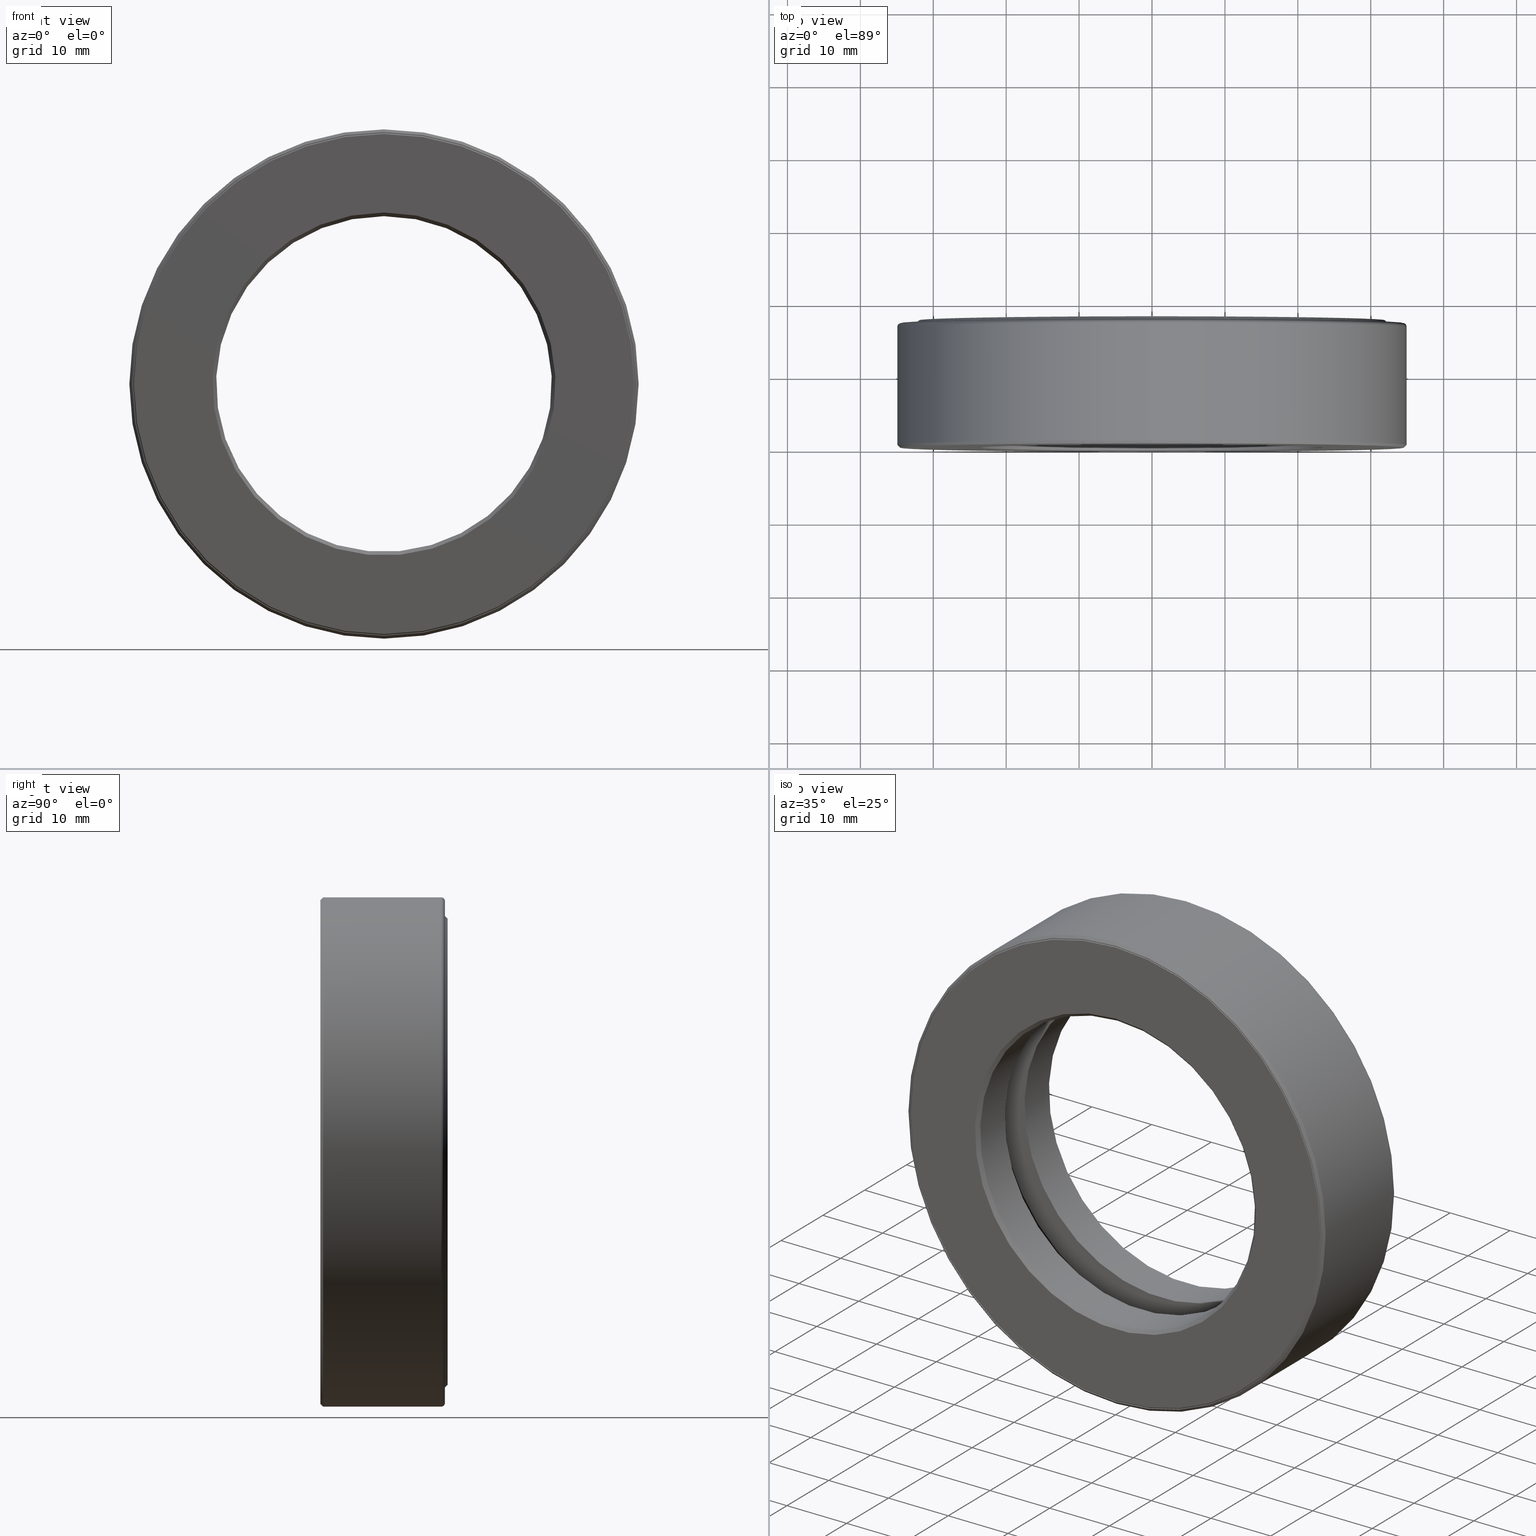
[diagram: canonical four-view strip — front | top / right | iso, engineering-drawing reading convention]
A machine part, canonical four-view strip (front | top / right | iso — engineering-drawing reading convention). The complete STEP part file that produces these views, byte-faithful:
ISO-10303-21;
HEADER;
FILE_DESCRIPTION (( 'STEP AP203' ),
    '1' );
FILE_NAME ('T-100-25.step',
    '2016-06-29T18:27:26',
    ( '' ),
    ( '' ),
    'SwSTEP 2.0',
    'SolidWorks 2016',
    '' );
FILE_SCHEMA (( 'CONFIG_CONTROL_DESIGN' ));
ENDSEC;

DATA;
#1 = DIRECTION ( 'NONE',  ( -0.0000000000000000000, 1.000000000000000000, -0.0000000000000000000 ) ) ;
#2 = EDGE_LOOP ( 'NONE', ( #434 ) ) ;
#3 = EDGE_LOOP ( 'NONE', ( #406 ) ) ;
#4 = EDGE_CURVE ( 'NONE', #81, #81, #383, .T. ) ;
#5 = FACE_OUTER_BOUND ( 'NONE', #206, .T. ) ;
#6 = ADVANCED_FACE ( 'NONE', ( #414, #279 ), #464, .T. ) ;
#7 = DIRECTION ( 'NONE',  ( 0.0000000000000000000, 0.0000000000000000000, 1.000000000000000000 ) ) ;
#8 = CIRCLE ( 'NONE', #339, 1.359999999999999900 ) ;
#9 = ADVANCED_FACE ( 'NONE', ( #175, #259 ), #73, .F. ) ;
#10 = EDGE_LOOP ( 'NONE', ( #548 ) ) ;
#11 = CALENDAR_DATE ( 2016, 29, 6 ) ;
#12 = FACE_OUTER_BOUND ( 'NONE', #10, .T. ) ;
#13 = AXIS2_PLACEMENT_3D ( 'NONE', #114, #415, #361 ) ;
#14 = CARTESIAN_POINT ( 'NONE',  ( 0.0000000000000000000, 0.0000000000000000000, 0.0000000000000000000 ) ) ;
#15 = DIRECTION ( 'NONE',  ( 1.000000000000000000, 0.0000000000000000000, 0.0000000000000000000 ) ) ;
#16 = ADVANCED_BREP_SHAPE_REPRESENTATION ( 'T-100-25', ( #392, #509, #528, #197, #467, #525, #554 ), #345 ) ;
#17 = PERSON ( 'UNSPECIFIED', 'UNSPECIFIED', 'UNSPECIFIED', ('UNSPECIFIED'), ('UNSPECIFIED'), ('UNSPECIFIED') ) ;
#18 = CARTESIAN_POINT ( 'NONE',  ( 0.0000000000000000000, -6.189343110645596500E-017, 0.0000000000000000000 ) ) ;
#19 = VERTEX_POINT ( 'NONE', #452 ) ;
#20 = EDGE_LOOP ( 'NONE', ( #132 ) ) ;
#21 = CYLINDRICAL_SURFACE ( 'NONE', #330, 0.9062500000000001100 ) ;
#22 = ADVANCED_FACE ( 'NONE', ( #46, #394 ), #522, .F. ) ;
#23 = CARTESIAN_POINT ( 'NONE',  ( 0.0000000000000000000, 0.4375000000000000600, 1.347999999999999600 ) ) ;
#24 = PRODUCT_RELATED_PRODUCT_CATEGORY ( 'detail', '', ( #105 ) ) ;
#25 = PERSON_AND_ORGANIZATION_ROLE ( 'design_supplier' ) ;
#26 = AXIS2_PLACEMENT_3D ( 'NONE', #162, #210, #77 ) ;
#27 = ORIENTED_EDGE ( 'NONE', *, *, #117, .F. ) ;
#28 = ORIENTED_EDGE ( 'NONE', *, *, #307, .T. ) ;
#29 = DIRECTION ( 'NONE',  ( 0.0000000000000000000, -1.000000000000000000, 0.0000000000000000000 ) ) ;
#30 = CIRCLE ( 'NONE', #391, 1.355000000000000000 ) ;
#31 = DIRECTION ( 'NONE',  ( 0.0000000000000000000, 0.0000000000000000000, 1.000000000000000000 ) ) ;
#32 = CARTESIAN_POINT ( 'NONE',  ( 1.885147471968638200E-016, 0.4375000000000000600, 0.0000000000000000000 ) ) ;
#33 = DIRECTION ( 'NONE',  ( -0.0000000000000000000, 1.000000000000000000, -0.0000000000000000000 ) ) ;
#34 = AXIS2_PLACEMENT_3D ( 'NONE', #14, #344, #199 ) ;
#35 = CIRCLE ( 'NONE', #52, 1.375000000000000000 ) ;
#36 = EDGE_LOOP ( 'NONE', ( #144 ) ) ;
#37 = DIRECTION ( 'NONE',  ( -0.0000000000000000000, 1.000000000000000000, -0.0000000000000000000 ) ) ;
#38 = COORDINATED_UNIVERSAL_TIME_OFFSET ( 5, 0, .BEHIND. ) ;
#39 = VERTEX_POINT ( 'NONE', #489 ) ;
#40 = EDGE_CURVE ( 'NONE', #39, #39, #267, .T. ) ;
#41 = ORIENTED_EDGE ( 'NONE', *, *, #382, .F. ) ;
#42 = EDGE_LOOP ( 'NONE', ( #487 ) ) ;
#43 = AXIS2_PLACEMENT_3D ( 'NONE', #387, #237, #15 ) ;
#44 = CIRCLE ( 'NONE', #351, 1.314749999999999600 ) ;
#45 = AXIS2_PLACEMENT_3D ( 'NONE', #227, #515, #425 ) ;
#46 = FACE_OUTER_BOUND ( 'NONE', #51, .T. ) ;
#47 = DATE_AND_TIME ( #170, #281 ) ;
#48 = VERTEX_POINT ( 'NONE', #437 ) ;
#49 = CARTESIAN_POINT ( 'NONE',  ( 0.0000000000000000000, 0.02000000000000046900, 0.0000000000000000000 ) ) ;
#50 = EDGE_LOOP ( 'NONE', ( #348 ) ) ;
#51 = EDGE_LOOP ( 'NONE', ( #304 ) ) ;
#52 = AXIS2_PLACEMENT_3D ( 'NONE', #502, #409, #308 ) ;
#53 = VERTEX_POINT ( 'NONE', #445 ) ;
#54 = ADVANCED_FACE ( 'NONE', ( #450, #428 ), #97, .T. ) ;
#55 = CARTESIAN_POINT ( 'NONE',  ( 0.0000000000000000000, 0.6674999999999995400, 0.0000000000000000000 ) ) ;
#56 = DIRECTION ( 'NONE',  ( 0.0000000000000000000, 0.0000000000000000000, 1.000000000000000000 ) ) ;
#57 = ADVANCED_FACE ( 'NONE', ( #568, #547 ), #262, .T. ) ;
#58 = CARTESIAN_POINT ( 'NONE',  ( -1.842120276897010000E-032, 4.268512490100411300E-018, 0.0000000000000000000 ) ) ;
#59 = CONICAL_SURFACE ( 'NONE', #476, 1.259999999999999600, 0.7853981633974498300 ) ;
#60 = EDGE_LOOP ( 'NONE', ( #195 ) ) ;
#61 = CARTESIAN_POINT ( 'NONE',  ( 0.0000000000000000000, 0.5995000000000002500, 1.347999999999999600 ) ) ;
#62 = APPROVAL_PERSON_ORGANIZATION ( #490, #514, #161 ) ;
#63 = DIRECTION ( 'NONE',  ( 0.0000000000000000000, 0.0000000000000000000, 1.000000000000000000 ) ) ;
#64 = CYLINDRICAL_SURFACE ( 'NONE', #34, 1.294999999999999900 ) ;
#65 = PRODUCT_DEFINITION_FORMATION_WITH_SPECIFIED_SOURCE ( 'ANY', '', #105, .NOT_KNOWN. ) ;
#66 = DIRECTION ( 'NONE',  ( 0.0000000000000000000, 0.0000000000000000000, 1.000000000000000000 ) ) ;
#67 = DIRECTION ( 'NONE',  ( -0.0000000000000000000, 1.000000000000000000, -0.0000000000000000000 ) ) ;
#68 = ADVANCED_FACE ( 'NONE', ( #151, #322 ), #59, .T. ) ;
#69 = CARTESIAN_POINT ( 'NONE',  ( 0.0000000000000000000, 0.6524999999999999700, 1.375000000000000000 ) ) ;
#70 = AXIS2_PLACEMENT_3D ( 'NONE', #306, #456, #216 ) ;
#71 = CARTESIAN_POINT ( 'NONE',  ( 0.0000000000000000000, -5.975917486140575200E-017, 0.0000000000000000000 ) ) ;
#72 = APPROVAL_STATUS ( 'not_yet_approved' ) ;
#73 = CYLINDRICAL_SURFACE ( 'NONE', #546, 1.355000000000000000 ) ;
#74 = CARTESIAN_POINT ( 'NONE',  ( 0.0000000000000000000, 0.2499999999999999700, 0.0000000000000000000 ) ) ;
#75 = SECURITY_CLASSIFICATION_LEVEL ( 'unclassified' ) ;
#76 = DIRECTION ( 'NONE',  ( 0.0000000000000000000, -1.000000000000000000, 0.0000000000000000000 ) ) ;
#77 = DIRECTION ( 'NONE',  ( 0.0000000000000000000, 0.0000000000000000000, 1.000000000000000000 ) ) ;
#78 = CIRCLE ( 'NONE', #129, 1.347999999999999600 ) ;
#79 = ORIENTED_EDGE ( 'NONE', *, *, #364, .T. ) ;
#80 = COORDINATED_UNIVERSAL_TIME_OFFSET ( 5, 0, .BEHIND. ) ;
#81 = VERTEX_POINT ( 'NONE', #285 ) ;
#82 = EDGE_CURVE ( 'NONE', #48, #48, #510, .T. ) ;
#83 = CARTESIAN_POINT ( 'NONE',  ( 0.0000000000000000000, 0.0000000000000000000, 0.0000000000000000000 ) ) ;
#84 = ORIENTED_EDGE ( 'NONE', *, *, #200, .T. ) ;
#85 = ORIENTED_EDGE ( 'NONE', *, *, #516, .F. ) ;
#86 = DIRECTION ( 'NONE',  ( -0.0000000000000000000, 1.000000000000000000, -0.0000000000000000000 ) ) ;
#87 = CALENDAR_DATE ( 2016, 29, 6 ) ;
#88 = AXIS2_PLACEMENT_3D ( 'NONE', #166, #219, #413 ) ;
#89 = CARTESIAN_POINT ( 'NONE',  ( 0.0000000000000000000, 0.0000000000000000000, 0.0000000000000000000 ) ) ;
#90 = FACE_OUTER_BOUND ( 'NONE', #50, .T. ) ;
#91 = ORIENTED_EDGE ( 'NONE', *, *, #326, .T. ) ;
#92 = LOCAL_TIME ( 14, 27, 26.00000000000000000, #314 ) ;
#93 = CIRCLE ( 'NONE', #186, 0.9062500000000002200 ) ;
#94 = AXIS2_PLACEMENT_3D ( 'NONE', #71, #572, #202 ) ;
#95 = CARTESIAN_POINT ( 'NONE',  ( 0.0000000000000000000, 0.2499999999999998600, 0.0000000000000000000 ) ) ;
#96 = EDGE_CURVE ( 'NONE', #295, #295, #149, .T. ) ;
#97 = TOROIDAL_SURFACE ( 'NONE', #143, 1.355000000000000000, 0.02000000000000005900 ) ;
#98 = EDGE_LOOP ( 'NONE', ( #120 ) ) ;
#99 = VERTEX_POINT ( 'NONE', #69 ) ;
#100 = CARTESIAN_POINT ( 'NONE',  ( 0.0000000000000000000, 0.4375000000000001100, 0.0000000000000000000 ) ) ;
#101 = DIRECTION ( 'NONE',  ( -0.0000000000000000000, 1.000000000000000000, -0.0000000000000000000 ) ) ;
#102 = SPHERICAL_SURFACE ( 'NONE', #602, 0.1562500000000000000 ) ;
#103 = ADVANCED_FACE ( 'NONE', ( #119, #439 ), #211, .F. ) ;
#104 = EDGE_LOOP ( 'NONE', ( #303 ) ) ;
#105 = PRODUCT ( 'T-100-25', 'T-100-25', '', ( #208 ) ) ;
#106 = VERTEX_POINT ( 'NONE', #346 ) ;
#107 = ADVANCED_FACE ( 'NONE', ( ), #372, .T. ) ;
#108 = CARTESIAN_POINT ( 'NONE',  ( 0.0000000000000000000, 0.0000000000000000000, 0.0000000000000000000 ) ) ;
#109 = ORIENTED_EDGE ( 'NONE', *, *, #465, .F. ) ;
#110 =( NAMED_UNIT ( * ) SI_UNIT ( $, .STERADIAN. ) SOLID_ANGLE_UNIT ( ) );
#111 = PERSON_AND_ORGANIZATION ( #17, #184 ) ;
#112 = VERTEX_POINT ( 'NONE', #23 ) ;
#113 = APPROVAL_STATUS ( 'not_yet_approved' ) ;
#114 = CARTESIAN_POINT ( 'NONE',  ( 0.0000000000000000000, 0.6724999999999999900, 0.0000000000000000000 ) ) ;
#115 = PERSON_AND_ORGANIZATION_ROLE ( 'classification_officer' ) ;
#116 = CARTESIAN_POINT ( 'NONE',  ( 0.0000000000000000000, 0.6875000000000000000, 0.0000000000000000000 ) ) ;
#117 = EDGE_CURVE ( 'NONE', #112, #112, #78, .T. ) ;
#118 = CARTESIAN_POINT ( 'NONE',  ( 0.0000000000000000000, 0.6524999999999999700, 1.294999999999999900 ) ) ;
#119 = FACE_BOUND ( 'NONE', #366, .T. ) ;
#120 = ORIENTED_EDGE ( 'NONE', *, *, #582, .F. ) ;
#121 = VERTEX_POINT ( 'NONE', #497 ) ;
#122 = DIRECTION ( 'NONE',  ( -0.0000000000000000000, 1.000000000000000000, -0.0000000000000000000 ) ) ;
#123 = CC_DESIGN_PERSON_AND_ORGANIZATION_ASSIGNMENT ( #111, #448, ( #435 ) ) ;
#124 = PLANE ( 'NONE',  #180 ) ;
#125 = EDGE_LOOP ( 'NONE', ( #27 ) ) ;
#126 = EDGE_LOOP ( 'NONE', ( #183 ) ) ;
#127 = LOCAL_TIME ( 14, 27, 26.00000000000000000, #538 ) ;
#128 = FACE_OUTER_BOUND ( 'NONE', #367, .T. ) ;
#129 = AXIS2_PLACEMENT_3D ( 'NONE', #171, #433, #457 ) ;
#130 = DIRECTION ( 'NONE',  ( -0.0000000000000000000, 1.000000000000000000, -0.0000000000000000000 ) ) ;
#131 = EDGE_LOOP ( 'NONE', ( #495 ) ) ;
#132 = ORIENTED_EDGE ( 'NONE', *, *, #200, .F. ) ;
#133 = CARTESIAN_POINT ( 'NONE',  ( 1.189749999999999900, 0.3437500000000000600, -8.307979845777234500E-015 ) ) ;
#134 = DATE_AND_TIME ( #11, #92 ) ;
#135 = DIRECTION ( 'NONE',  ( 0.0000000000000000000, 0.0000000000000000000, 1.000000000000000000 ) ) ;
#136 = DIRECTION ( 'NONE',  ( 0.0000000000000000000, 0.0000000000000000000, 1.000000000000000000 ) ) ;
#137 = EDGE_LOOP ( 'NONE', ( #337 ) ) ;
#138 = ORIENTED_EDGE ( 'NONE', *, *, #187, .T. ) ;
#139 = PERSON_AND_ORGANIZATION ( #17, #184 ) ;
#140 = VERTEX_POINT ( 'NONE', #400 ) ;
#141 = ADVANCED_FACE ( 'NONE', ( ), #102, .T. ) ;
#142 = SECURITY_CLASSIFICATION ( '', '', #75 ) ;
#143 = AXIS2_PLACEMENT_3D ( 'NONE', #264, #550, #354 ) ;
#144 = ORIENTED_EDGE ( 'NONE', *, *, #40, .F. ) ;
#145 = FACE_BOUND ( 'NONE', #347, .T. ) ;
#146 = AXIS2_PLACEMENT_3D ( 'NONE', #424, #419, #269 ) ;
#147 = CARTESIAN_POINT ( 'NONE',  ( 0.0000000000000000000, 0.2499999999999998600, 0.0000000000000000000 ) ) ;
#148 = DIRECTION ( 'NONE',  ( 0.0000000000000000000, 0.0000000000000000000, 1.000000000000000000 ) ) ;
#149 = CIRCLE ( 'NONE', #557, 1.347999999999999600 ) ;
#150 = DIRECTION ( 'NONE',  ( -0.0000000000000000000, 1.000000000000000000, 0.0000000000000000000 ) ) ;
#151 = FACE_OUTER_BOUND ( 'NONE', #531, .T. ) ;
#152 = CC_DESIGN_APPROVAL ( #500, ( #65 ) ) ;
#153 = APPROVAL_PERSON_ORGANIZATION ( #480, #446, #353 ) ;
#154 = VERTEX_POINT ( 'NONE', #454 ) ;
#155 = DIRECTION ( 'NONE',  ( 0.0000000000000000000, 0.0000000000000000000, 1.000000000000000000 ) ) ;
#156 = APPROVAL_ROLE ( '' ) ;
#157 = EDGE_CURVE ( 'NONE', #524, #524, #44, .T. ) ;
#158 = APPLICATION_PROTOCOL_DEFINITION ( 'international standard', 'config_control_design', 1994, #404 ) ;
#159 = ORIENTED_EDGE ( 'NONE', *, *, #310, .F. ) ;
#160 = EDGE_LOOP ( 'NONE', ( #474 ) ) ;
#161 = APPROVAL_ROLE ( '' ) ;
#162 = CARTESIAN_POINT ( 'NONE',  ( 0.0000000000000000000, 0.6724999999999999900, 0.0000000000000000000 ) ) ;
#163 =( CONVERSION_BASED_UNIT ( 'INCH', #600 ) LENGTH_UNIT ( ) NAMED_UNIT ( #341 ) );
#164 = DIRECTION ( 'NONE',  ( 0.0000000000000000000, 0.0000000000000000000, 1.000000000000000000 ) ) ;
#165 = DIRECTION ( 'NONE',  ( 0.0000000000000000000, 0.0000000000000000000, 1.000000000000000000 ) ) ;
#166 = CARTESIAN_POINT ( 'NONE',  ( 0.0000000000000000000, 0.6524999999999999700, 0.0000000000000000000 ) ) ;
#167 = DIRECTION ( 'NONE',  ( -0.0000000000000000000, 1.000000000000000000, -0.0000000000000000000 ) ) ;
#168 = ORIENTED_EDGE ( 'NONE', *, *, #96, .T. ) ;
#169 = EDGE_CURVE ( 'NONE', #154, #154, #212, .T. ) ;
#170 = CALENDAR_DATE ( 2016, 29, 6 ) ;
#171 = CARTESIAN_POINT ( 'NONE',  ( 0.0000000000000000000, 0.4375000000000000600, 0.0000000000000000000 ) ) ;
#172 = CIRCLE ( 'NONE', #263, 0.9062500000000001100 ) ;
#173 = CARTESIAN_POINT ( 'NONE',  ( 0.0000000000000000000, 0.6724999999999999900, 0.0000000000000000000 ) ) ;
#174 = CC_DESIGN_PERSON_AND_ORGANIZATION_ASSIGNMENT ( #241, #115, ( #142 ) ) ;
#175 = FACE_OUTER_BOUND ( 'NONE', #377, .T. ) ;
#176 = ORIENTED_EDGE ( 'NONE', *, *, #482, .T. ) ;
#177 = VERTEX_POINT ( 'NONE', #201 ) ;
#178 = EDGE_CURVE ( 'NONE', #99, #99, #35, .T. ) ;
#179 = CARTESIAN_POINT ( 'NONE',  ( 2.120999995080942100E-016, 0.2499999999999998600, 0.0000000000000000000 ) ) ;
#180 = AXIS2_PLACEMENT_3D ( 'NONE', #173, #181, #558 ) ;
#181 = DIRECTION ( 'NONE',  ( 0.0000000000000000000, -1.000000000000000000, 0.0000000000000000000 ) ) ;
#182 = CIRCLE ( 'NONE', #220, 1.064749999999999900 ) ;
#183 = ORIENTED_EDGE ( 'NONE', *, *, #187, .F. ) ;
#184 = ORGANIZATION ( 'UNSPECIFIED', 'UNSPECIFIED', '' ) ;
#185 = FACE_OUTER_BOUND ( 'NONE', #313, .T. ) ;
#186 = AXIS2_PLACEMENT_3D ( 'NONE', #196, #244, #66 ) ;
#187 = EDGE_CURVE ( 'NONE', #513, #513, #8, .T. ) ;
#188 = ORIENTED_EDGE ( 'NONE', *, *, #96, .F. ) ;
#189 = EDGE_LOOP ( 'NONE', ( #328 ) ) ;
#190 = DIRECTION ( 'NONE',  ( 0.0000000000000000000, 0.0000000000000000000, 1.000000000000000000 ) ) ;
#191 = CARTESIAN_POINT ( 'NONE',  ( 0.0000000000000000000, 0.0000000000000000000, 0.0000000000000000000 ) ) ;
#192 = CARTESIAN_POINT ( 'NONE',  ( 0.0000000000000000000, 0.6875000000000000000, 0.0000000000000000000 ) ) ;
#193 = DIRECTION ( 'NONE',  ( 0.0000000000000000000, 0.0000000000000000000, 1.000000000000000000 ) ) ;
#194 = VERTEX_POINT ( 'NONE', #544 ) ;
#195 = ORIENTED_EDGE ( 'NONE', *, *, #169, .T. ) ;
#196 = CARTESIAN_POINT ( 'NONE',  ( 0.0000000000000000000, 0.4375000000000000600, 0.0000000000000000000 ) ) ;
#197 = MANIFOLD_SOLID_BREP ( 'BALLS[1]', #320 ) ;
#198 = FACE_OUTER_BOUND ( 'NONE', #126, .T. ) ;
#199 = DIRECTION ( 'NONE',  ( 0.0000000000000000000, 0.0000000000000000000, 1.000000000000000000 ) ) ;
#200 = EDGE_CURVE ( 'NONE', #226, #226, #536, .T. ) ;
#201 = CARTESIAN_POINT ( 'NONE',  ( 0.0000000000000000000, 0.6724999999999999900, 1.355000000000000000 ) ) ;
#202 = DIRECTION ( 'NONE',  ( 0.0000000000000000000, 0.0000000000000000000, 1.000000000000000000 ) ) ;
#203 = CARTESIAN_POINT ( 'NONE',  ( 0.0000000000000000000, 0.01499999999999984000, 1.374999999999999300 ) ) ;
#204 = ORIENTED_EDGE ( 'NONE', *, *, #157, .T. ) ;
#205 = AXIS2_PLACEMENT_3D ( 'NONE', #147, #67, #535 ) ;
#206 = EDGE_LOOP ( 'NONE', ( #321 ) ) ;
#207 = DIRECTION ( 'NONE',  ( 0.0000000000000000000, -0.0000000000000000000, -1.000000000000000000 ) ) ;
#208 = MECHANICAL_CONTEXT ( 'NONE', #404, 'mechanical' ) ;
#209 = AXIS2_PLACEMENT_3D ( 'NONE', #32, #29, #597 ) ;
#210 = DIRECTION ( 'NONE',  ( -0.0000000000000000000, 1.000000000000000000, -0.0000000000000000000 ) ) ;
#211 = PLANE ( 'NONE',  #297 ) ;
#212 = CIRCLE ( 'NONE', #26, 1.294999999999999900 ) ;
#213 = AXIS2_PLACEMENT_3D ( 'NONE', #83, #86, #421 ) ;
#214 = DIRECTION ( 'NONE',  ( 0.0000000000000000000, 0.0000000000000000000, 1.000000000000000000 ) ) ;
#215 = EDGE_LOOP ( 'NONE', ( #176 ) ) ;
#216 = DIRECTION ( 'NONE',  ( 0.0000000000000000000, -0.0000000000000000000, -1.000000000000000000 ) ) ;
#217 = COORDINATED_UNIVERSAL_TIME_OFFSET ( 5, 0, .BEHIND. ) ;
#218 = CIRCLE ( 'NONE', #205, 1.355000000000000000 ) ;
#219 = DIRECTION ( 'NONE',  ( -0.0000000000000000000, 1.000000000000000000, -0.0000000000000000000 ) ) ;
#220 = AXIS2_PLACEMENT_3D ( 'NONE', #95, #479, #381 ) ;
#221 = DIRECTION ( 'NONE',  ( 6.982962677686269100E-015, -0.0000000000000000000, 1.000000000000000000 ) ) ;
#222 = ORIENTED_EDGE ( 'NONE', *, *, #582, .T. ) ;
#223 = EDGE_LOOP ( 'NONE', ( #229 ) ) ;
#224 = AXIS2_PLACEMENT_3D ( 'NONE', #116, #315, #311 ) ;
#225 = APPROVAL_PERSON_ORGANIZATION ( #416, #500, #156 ) ;
#226 = VERTEX_POINT ( 'NONE', #258 ) ;
#227 = CARTESIAN_POINT ( 'NONE',  ( 0.0000000000000000000, 0.6524999999999999700, 0.0000000000000000000 ) ) ;
#228 = FACE_OUTER_BOUND ( 'NONE', #574, .T. ) ;
#229 = ORIENTED_EDGE ( 'NONE', *, *, #178, .T. ) ;
#230 = PERSON_AND_ORGANIZATION ( #17, #184 ) ;
#231 = VERTEX_POINT ( 'NONE', #257 ) ;
#232 = DIRECTION ( 'NONE',  ( -0.0000000000000000000, 1.000000000000000000, -0.0000000000000000000 ) ) ;
#233 = ORIENTED_EDGE ( 'NONE', *, *, #4, .F. ) ;
#234 = EDGE_LOOP ( 'NONE', ( #188 ) ) ;
#235 = FACE_OUTER_BOUND ( 'NONE', #2, .T. ) ;
#236 = ADVANCED_FACE ( 'NONE', ( ), #290, .T. ) ;
#237 = DIRECTION ( 'NONE',  ( 0.0000000000000000000, 0.0000000000000000000, -1.000000000000000000 ) ) ;
#238 = ADVANCED_FACE ( 'NONE', ( #355, #573 ), #124, .F. ) ;
#239 = CYLINDRICAL_SURFACE ( 'NONE', #245, 0.9062500000000002200 ) ;
#240 = DIRECTION ( 'NONE',  ( 0.0000000000000000000, 0.0000000000000000000, 1.000000000000000000 ) ) ;
#241 = PERSON_AND_ORGANIZATION ( #17, #184 ) ;
#242 = CIRCLE ( 'NONE', #360, 1.064749999999999900 ) ;
#243 = ADVANCED_FACE ( 'NONE', ( #412, #228 ), #239, .F. ) ;
#244 = DIRECTION ( 'NONE',  ( -0.0000000000000000000, 1.000000000000000000, -0.0000000000000000000 ) ) ;
#245 = AXIS2_PLACEMENT_3D ( 'NONE', #89, #130, #369 ) ;
#246 = DIRECTION ( 'NONE',  ( -0.0000000000000000000, 1.000000000000000000, 0.0000000000000000000 ) ) ;
#247 = DIRECTION ( 'NONE',  ( -0.0000000000000000000, 1.000000000000000000, -0.0000000000000000000 ) ) ;
#248 = ADVANCED_FACE ( 'NONE', ( #604, #458 ), #278, .F. ) ;
#249 = AXIS2_PLACEMENT_3D ( 'NONE', #583, #247, #63 ) ;
#250 = VERTEX_POINT ( 'NONE', #118 ) ;
#251 = EDGE_LOOP ( 'NONE', ( #204 ) ) ;
#252 = DATE_TIME_ROLE ( 'classification_date' ) ;
#253 = CALENDAR_DATE ( 2016, 29, 6 ) ;
#254 = DIRECTION ( 'NONE',  ( -0.0000000000000000000, 1.000000000000000000, -0.0000000000000000000 ) ) ;
#255 = FACE_OUTER_BOUND ( 'NONE', #436, .T. ) ;
#256 = PERSON_AND_ORGANIZATION_ROLE ( 'design_owner' ) ;
#257 = CARTESIAN_POINT ( 'NONE',  ( 0.0000000000000000000, 6.829619984160658000E-017, 0.9262500000000002400 ) ) ;
#258 = CARTESIAN_POINT ( 'NONE',  ( 0.0000000000000000000, 0.6524999999999999700, 1.355000000000000000 ) ) ;
#259 = FACE_OUTER_BOUND ( 'NONE', #537, .T. ) ;
#260 = EDGE_LOOP ( 'NONE', ( #79 ) ) ;
#261 = VERTEX_POINT ( 'NONE', #588 ) ;
#262 = PLANE ( 'NONE',  #209 ) ;
#263 = AXIS2_PLACEMENT_3D ( 'NONE', #55, #101, #193 ) ;
#264 = CARTESIAN_POINT ( 'NONE',  ( 0.0000000000000000000, 0.6524999999999999700, 0.0000000000000000000 ) ) ;
#265 = EDGE_CURVE ( 'NONE', #140, #140, #592, .T. ) ;
#266 = CARTESIAN_POINT ( 'NONE',  ( 0.0000000000000000000, 0.4375000000000001100, 0.0000000000000000000 ) ) ;
#267 = CIRCLE ( 'NONE', #224, 1.259999999999999600 ) ;
#268 = FACE_BOUND ( 'NONE', #283, .T. ) ;
#269 = DIRECTION ( 'NONE',  ( 0.0000000000000000000, 0.0000000000000000000, 1.000000000000000000 ) ) ;
#270 = AXIS2_PLACEMENT_3D ( 'NONE', #542, #300, #449 ) ;
#271 = CARTESIAN_POINT ( 'NONE',  ( 0.0000000000000000000, -6.016065055398661200E-017, 0.0000000000000000000 ) ) ;
#272 = CLOSED_SHELL ( 'NONE', ( #488, #287, #9, #291, #484, #238, #54, #388, #567, #444, #248, #333, #343, #331, #540, #103 ) ) ;
#273 = EDGE_LOOP ( 'NONE', ( #585 ) ) ;
#274 = AXIS2_PLACEMENT_3D ( 'NONE', #508, #596, #463 ) ;
#275 = CIRCLE ( 'NONE', #270, 0.9262500000000002400 ) ;
#276 = EDGE_CURVE ( 'NONE', #329, #329, #312, .T. ) ;
#277 = DIRECTION ( 'NONE',  ( 0.0000000000000000000, -1.000000000000000000, 0.0000000000000000000 ) ) ;
#278 = CYLINDRICAL_SURFACE ( 'NONE', #213, 1.355000000000000000 ) ;
#279 = FACE_OUTER_BOUND ( 'NONE', #125, .T. ) ;
#280 = DIRECTION ( 'NONE',  ( 0.0000000000000000000, 0.0000000000000000000, 1.000000000000000000 ) ) ;
#281 = LOCAL_TIME ( 14, 27, 26.00000000000000000, #217 ) ;
#282 = VERTEX_POINT ( 'NONE', #350 ) ;
#283 = EDGE_LOOP ( 'NONE', ( #138 ) ) ;
#284 = EDGE_LOOP ( 'NONE', ( #41 ) ) ;
#285 = CARTESIAN_POINT ( 'NONE',  ( 0.0000000000000000000, 0.2499999999999999700, 0.9062500000000002200 ) ) ;
#286 = DIRECTION ( 'NONE',  ( -0.0000000000000000000, 1.000000000000000000, -0.0000000000000000000 ) ) ;
#287 = ADVANCED_FACE ( 'NONE', ( #336, #563 ), #472, .F. ) ;
#288 = CARTESIAN_POINT ( 'NONE',  ( 0.0000000000000000000, 0.6524999999999999700, 0.0000000000000000000 ) ) ;
#289 = CC_DESIGN_PERSON_AND_ORGANIZATION_ASSIGNMENT ( #139, #301, ( #65 ) ) ;
#290 = SPHERICAL_SURFACE ( 'NONE', #274, 0.1562500000000000000 ) ;
#291 = ADVANCED_FACE ( 'NONE', ( #552, #501 ), #562, .F. ) ;
#292 = DIRECTION ( 'NONE',  ( -0.0000000000000000000, 1.000000000000000000, -0.0000000000000000000 ) ) ;
#293 = EDGE_LOOP ( 'NONE', ( #91 ) ) ;
#294 = DATE_AND_TIME ( #87, #127 ) ;
#295 = VERTEX_POINT ( 'NONE', #61 ) ;
#296 = DIRECTION ( 'NONE',  ( 0.0000000000000000000, 0.0000000000000000000, 1.000000000000000000 ) ) ;
#297 = AXIS2_PLACEMENT_3D ( 'NONE', #549, #352, #207 ) ;
#298 = ADVANCED_FACE ( 'NONE', ( #90, #427 ), #473, .T. ) ;
#299 = DIRECTION ( 'NONE',  ( 1.000000000000000000, 0.0000000000000000000, 0.0000000000000000000 ) ) ;
#300 = DIRECTION ( 'NONE',  ( -0.0000000000000000000, 1.000000000000000000, -0.0000000000000000000 ) ) ;
#301 = PERSON_AND_ORGANIZATION_ROLE ( 'creator' ) ;
#302 = AXIS2_PLACEMENT_3D ( 'NONE', #342, #150, #493 ) ;
#303 = ORIENTED_EDGE ( 'NONE', *, *, #82, .T. ) ;
#304 = ORIENTED_EDGE ( 'NONE', *, *, #465, .T. ) ;
#305 = APPLICATION_CONTEXT ( 'configuration controlled 3d designs of mechanical parts and assemblies' ) ;
#306 = CARTESIAN_POINT ( 'NONE',  ( -8.986342084421983100E-016, 0.4375000000000000600, 0.0000000000000000000 ) ) ;
#307 = EDGE_CURVE ( 'NONE', #470, #470, #182, .T. ) ;
#308 = DIRECTION ( 'NONE',  ( 0.0000000000000000000, 0.0000000000000000000, 1.000000000000000000 ) ) ;
#309 = DIRECTION ( 'NONE',  ( -0.0000000000000000000, 1.000000000000000000, -0.0000000000000000000 ) ) ;
#310 = EDGE_CURVE ( 'NONE', #261, #261, #242, .T. ) ;
#311 = DIRECTION ( 'NONE',  ( 0.0000000000000000000, 0.0000000000000000000, 1.000000000000000000 ) ) ;
#312 = CIRCLE ( 'NONE', #376, 1.374999999999999300 ) ;
#313 = EDGE_LOOP ( 'NONE', ( #469 ) ) ;
#314 = COORDINATED_UNIVERSAL_TIME_OFFSET ( 5, 0, .BEHIND. ) ;
#315 = DIRECTION ( 'NONE',  ( -0.0000000000000000000, 1.000000000000000000, -0.0000000000000000000 ) ) ;
#316 = SPHERICAL_SURFACE ( 'NONE', #43, 0.1562500000000000000 ) ;
#317 = AXIS2_PLACEMENT_3D ( 'NONE', #485, #246, #148 ) ;
#318 = DIRECTION ( 'NONE',  ( -0.0000000000000000000, 1.000000000000000000, -0.0000000000000000000 ) ) ;
#319 = AXIS2_PLACEMENT_3D ( 'NONE', #545, #587, #512 ) ;
#320 = CLOSED_SHELL ( 'NONE', ( #107 ) ) ;
#321 = ORIENTED_EDGE ( 'NONE', *, *, #276, .T. ) ;
#322 = FACE_BOUND ( 'NONE', #36, .T. ) ;
#323 = ORIENTED_EDGE ( 'NONE', *, *, #265, .F. ) ;
#324 = AXIS2_PLACEMENT_3D ( 'NONE', #288, #286, #577 ) ;
#325 = CONICAL_SURFACE ( 'NONE', #94, 1.349999999999999400, 0.7853981633974813600 ) ;
#326 = EDGE_CURVE ( 'NONE', #121, #121, #218, .T. ) ;
#327 = EDGE_LOOP ( 'NONE', ( #468 ) ) ;
#328 = ORIENTED_EDGE ( 'NONE', *, *, #382, .T. ) ;
#329 = VERTEX_POINT ( 'NONE', #203 ) ;
#330 = AXIS2_PLACEMENT_3D ( 'NONE', #108, #292, #7 ) ;
#331 = ADVANCED_FACE ( 'NONE', ( #255, #594 ), #461, .F. ) ;
#332 = AXIS2_PLACEMENT_3D ( 'NONE', #49, #431, #580 ) ;
#333 = ADVANCED_FACE ( 'NONE', ( #128, #539 ), #325, .T. ) ;
#334 = DIRECTION ( 'NONE',  ( -0.0000000000000000000, 1.000000000000000000, -0.0000000000000000000 ) ) ;
#335 = DIRECTION ( 'NONE',  ( -0.0000000000000000000, 1.000000000000000000, -0.0000000000000000000 ) ) ;
#336 = FACE_BOUND ( 'NONE', #284, .T. ) ;
#337 = ORIENTED_EDGE ( 'NONE', *, *, #4, .T. ) ;
#338 = PLANE ( 'NONE',  #317 ) ;
#339 = AXIS2_PLACEMENT_3D ( 'NONE', #466, #37, #365 ) ;
#340 = FACE_OUTER_BOUND ( 'NONE', #593, .T. ) ;
#341 = DIMENSIONAL_EXPONENTS ( 1.000000000000000000, 0.0000000000000000000, 0.0000000000000000000, 0.0000000000000000000, 0.0000000000000000000, 0.0000000000000000000, 0.0000000000000000000 ) ;
#342 = CARTESIAN_POINT ( 'NONE',  ( 0.0000000000000000000, 0.6875000000000000000, 0.0000000000000000000 ) ) ;
#343 = ADVANCED_FACE ( 'NONE', ( #340, #576 ), #401, .F. ) ;
#344 = DIRECTION ( 'NONE',  ( -0.0000000000000000000, 1.000000000000000000, -0.0000000000000000000 ) ) ;
#345 =( GEOMETRIC_REPRESENTATION_CONTEXT ( 3 ) GLOBAL_UNCERTAINTY_ASSIGNED_CONTEXT ( ( #520 ) ) GLOBAL_UNIT_ASSIGNED_CONTEXT ( ( #163, #503, #110 ) ) REPRESENTATION_CONTEXT ( 'NONE', 'WORKASPACE' ) );
#346 = CARTESIAN_POINT ( 'NONE',  ( 0.0000000000000000000, -5.975917486140575200E-017, 1.349999999999999400 ) ) ;
#347 = EDGE_LOOP ( 'NONE', ( #109 ) ) ;
#348 = ORIENTED_EDGE ( 'NONE', *, *, #117, .T. ) ;
#349 = CIRCLE ( 'NONE', #324, 1.294999999999999900 ) ;
#350 = CARTESIAN_POINT ( 'NONE',  ( 0.0000000000000000000, 0.2499999999999998300, 1.314749999999999600 ) ) ;
#351 = AXIS2_PLACEMENT_3D ( 'NONE', #266, #318, #214 ) ;
#352 = DIRECTION ( 'NONE',  ( 0.0000000000000000000, -1.000000000000000000, 0.0000000000000000000 ) ) ;
#353 = APPROVAL_ROLE ( '' ) ;
#354 = DIRECTION ( 'NONE',  ( 0.0000000000000000000, 0.0000000000000000000, 1.000000000000000000 ) ) ;
#355 = FACE_BOUND ( 'NONE', #3, .T. ) ;
#356 = CARTESIAN_POINT ( 'NONE',  ( 0.0000000000000000000, 0.2499999999999998600, 1.064749999999999900 ) ) ;
#357 = DIRECTION ( 'NONE',  ( 0.0000000000000000000, 0.0000000000000000000, 1.000000000000000000 ) ) ;
#358 = CARTESIAN_POINT ( 'NONE',  ( 0.0000000000000000000, -5.975917486140575200E-017, 0.0000000000000000000 ) ) ;
#359 = FACE_OUTER_BOUND ( 'NONE', #189, .T. ) ;
#360 = AXIS2_PLACEMENT_3D ( 'NONE', #100, #254, #240 ) ;
#361 = DIRECTION ( 'NONE',  ( 0.0000000000000000000, 0.0000000000000000000, 1.000000000000000000 ) ) ;
#362 = DIRECTION ( 'NONE',  ( 0.0000000000000000000, 0.0000000000000000000, 1.000000000000000000 ) ) ;
#363 = DESIGN_CONTEXT ( 'detailed design', #305, 'design' ) ;
#364 = EDGE_CURVE ( 'NONE', #231, #231, #275, .T. ) ;
#365 = DIRECTION ( 'NONE',  ( 0.0000000000000000000, 0.0000000000000000000, 1.000000000000000000 ) ) ;
#366 = EDGE_LOOP ( 'NONE', ( #233 ) ) ;
#367 = EDGE_LOOP ( 'NONE', ( #323 ) ) ;
#368 = FACE_OUTER_BOUND ( 'NONE', #423, .T. ) ;
#369 = DIRECTION ( 'NONE',  ( 0.0000000000000000000, 0.0000000000000000000, 1.000000000000000000 ) ) ;
#370 = CC_DESIGN_PERSON_AND_ORGANIZATION_ASSIGNMENT ( #442, #256, ( #105 ) ) ;
#371 = CC_DESIGN_DATE_AND_TIME_ASSIGNMENT ( #47, #252, ( #142 ) ) ;
#372 = SPHERICAL_SURFACE ( 'NONE', #319, 0.1562500000000000000 ) ;
#373 = ORIENTED_EDGE ( 'NONE', *, *, #265, .T. ) ;
#374 = LOCAL_TIME ( 14, 27, 26.00000000000000000, #38 ) ;
#375 = FACE_OUTER_BOUND ( 'NONE', #42, .T. ) ;
#376 = AXIS2_PLACEMENT_3D ( 'NONE', #561, #232, #135 ) ;
#377 = EDGE_LOOP ( 'NONE', ( #441 ) ) ;
#378 = AXIS2_PLACEMENT_3D ( 'NONE', #58, #390, #56 ) ;
#379 = CLOSED_SHELL ( 'NONE', ( #6, #530, #57, #243, #22, #447, #68, #298 ) ) ;
#380 = CIRCLE ( 'NONE', #249, 1.314749999999999600 ) ;
#381 = DIRECTION ( 'NONE',  ( 0.0000000000000000000, 0.0000000000000000000, 1.000000000000000000 ) ) ;
#382 = EDGE_CURVE ( 'NONE', #282, #282, #380, .T. ) ;
#383 = CIRCLE ( 'NONE', #396, 0.9062500000000002200 ) ;
#384 = DIRECTION ( 'NONE',  ( 0.0000000000000000000, 0.0000000000000000000, 1.000000000000000000 ) ) ;
#385 = EDGE_LOOP ( 'NONE', ( #477 ) ) ;
#386 = FACE_OUTER_BOUND ( 'NONE', #422, .T. ) ;
#387 = CARTESIAN_POINT ( 'NONE',  ( -1.189749999999999900, 0.3437500000000000600, 0.0000000000000000000 ) ) ;
#388 = ADVANCED_FACE ( 'NONE', ( #12, #5 ), #417, .T. ) ;
#389 = CARTESIAN_POINT ( 'NONE',  ( 0.0000000000000000000, 0.3437500000000000600, 0.0000000000000000000 ) ) ;
#390 = DIRECTION ( 'NONE',  ( -0.0000000000000000000, 1.000000000000000000, 0.0000000000000000000 ) ) ;
#391 = AXIS2_PLACEMENT_3D ( 'NONE', #271, #1, #579 ) ;
#392 = MANIFOLD_SOLID_BREP ( 'Revolve2[1]', #272 ) ;
#393 = CARTESIAN_POINT ( 'NONE',  ( 0.0000000000000000000, 0.0000000000000000000, 0.0000000000000000000 ) ) ;
#394 = FACE_BOUND ( 'NONE', #98, .T. ) ;
#395 = CARTESIAN_POINT ( 'NONE',  ( 0.0000000000000000000, 0.3437500000000000600, 0.0000000000000000000 ) ) ;
#396 = AXIS2_PLACEMENT_3D ( 'NONE', #74, #309, #165 ) ;
#397 = DATE_AND_TIME ( #523, #374 ) ;
#398 = DIRECTION ( 'NONE',  ( 0.0000000000000000000, 0.0000000000000000000, 1.000000000000000000 ) ) ;
#399 = CIRCLE ( 'NONE', #13, 1.355000000000000000 ) ;
#400 = CARTESIAN_POINT ( 'NONE',  ( 0.0000000000000000000, 0.004999999999999966300, 1.355000000000000000 ) ) ;
#401 = PLANE ( 'NONE',  #378 ) ;
#402 = CARTESIAN_POINT ( 'NONE',  ( 0.0000000000000000000, 0.4375000000000000600, 0.9062500000000002200 ) ) ;
#403 = AXIS2_PLACEMENT_3D ( 'NONE', #191, #526, #280 ) ;
#404 = APPLICATION_CONTEXT ( 'configuration controlled 3d designs of mechanical parts and assemblies' ) ;
#405 = DIRECTION ( 'NONE',  ( -0.0000000000000000000, 1.000000000000000000, -0.0000000000000000000 ) ) ;
#406 = ORIENTED_EDGE ( 'NONE', *, *, #169, .F. ) ;
#407 = EDGE_LOOP ( 'NONE', ( #222 ) ) ;
#408 = CC_DESIGN_SECURITY_CLASSIFICATION ( #142, ( #65 ) ) ;
#409 = DIRECTION ( 'NONE',  ( -0.0000000000000000000, 1.000000000000000000, -0.0000000000000000000 ) ) ;
#410 = EDGE_CURVE ( 'NONE', #106, #106, #565, .T. ) ;
#411 = CARTESIAN_POINT ( 'NONE',  ( 0.0000000000000000000, 0.6674999999999995400, 0.0000000000000000000 ) ) ;
#412 = FACE_OUTER_BOUND ( 'NONE', #407, .T. ) ;
#413 = DIRECTION ( 'NONE',  ( 0.0000000000000000000, 0.0000000000000000000, 1.000000000000000000 ) ) ;
#414 = FACE_BOUND ( 'NONE', #251, .T. ) ;
#415 = DIRECTION ( 'NONE',  ( -0.0000000000000000000, 1.000000000000000000, -0.0000000000000000000 ) ) ;
#416 = PERSON_AND_ORGANIZATION ( #17, #184 ) ;
#417 = CYLINDRICAL_SURFACE ( 'NONE', #438, 1.374999999999999800 ) ;
#418 = PRODUCT_DEFINITION_SHAPE ( 'NONE', 'NONE',  #435 ) ;
#419 = DIRECTION ( 'NONE',  ( -0.0000000000000000000, 1.000000000000000000, -0.0000000000000000000 ) ) ;
#420 = EDGE_CURVE ( 'NONE', #177, #177, #399, .T. ) ;
#421 = DIRECTION ( 'NONE',  ( 0.0000000000000000000, 0.0000000000000000000, 1.000000000000000000 ) ) ;
#422 = EDGE_LOOP ( 'NONE', ( #517 ) ) ;
#423 = EDGE_LOOP ( 'NONE', ( #529 ) ) ;
#424 = CARTESIAN_POINT ( 'NONE',  ( 0.0000000000000000000, 0.004999999999999966300, 0.0000000000000000000 ) ) ;
#425 = DIRECTION ( 'NONE',  ( 0.0000000000000000000, 0.0000000000000000000, 1.000000000000000000 ) ) ;
#426 = AXIS2_PLACEMENT_3D ( 'NONE', #192, #534, #296 ) ;
#427 = FACE_OUTER_BOUND ( 'NONE', #234, .T. ) ;
#428 = FACE_OUTER_BOUND ( 'NONE', #223, .T. ) ;
#429 = DATE_AND_TIME ( #253, #555 ) ;
#430 = FACE_OUTER_BOUND ( 'NONE', #137, .T. ) ;
#431 = DIRECTION ( 'NONE',  ( 0.0000000000000000000, -1.000000000000000000, 0.0000000000000000000 ) ) ;
#432 = AXIS2_PLACEMENT_3D ( 'NONE', #411, #122, #31 ) ;
#433 = DIRECTION ( 'NONE',  ( -0.0000000000000000000, 1.000000000000000000, -0.0000000000000000000 ) ) ;
#434 = ORIENTED_EDGE ( 'NONE', *, *, #310, .T. ) ;
#435 = PRODUCT_DEFINITION ( 'UNKNOWN', '', #65, #363 ) ;
#436 = EDGE_LOOP ( 'NONE', ( #599 ) ) ;
#437 = CARTESIAN_POINT ( 'NONE',  ( 0.0000000000000000000, 0.02000000000000046900, 0.9062499999999998900 ) ) ;
#438 = AXIS2_PLACEMENT_3D ( 'NONE', #393, #335, #398 ) ;
#439 = FACE_OUTER_BOUND ( 'NONE', #559, .T. ) ;
#440 = EDGE_CURVE ( 'NONE', #53, #53, #30, .T. ) ;
#441 = ORIENTED_EDGE ( 'NONE', *, *, #326, .F. ) ;
#442 = PERSON_AND_ORGANIZATION ( #17, #184 ) ;
#443 = FACE_OUTER_BOUND ( 'NONE', #451, .T. ) ;
#444 = ADVANCED_FACE ( 'NONE', ( #198, #475 ), #338, .F. ) ;
#445 = CARTESIAN_POINT ( 'NONE',  ( 0.0000000000000000000, -6.016065055398661200E-017, 1.355000000000000000 ) ) ;
#446 = APPROVAL ( #72, 'UNSPECIFIED' ) ;
#447 = ADVANCED_FACE ( 'NONE', ( #507, #145 ), #483, .T. ) ;
#448 = PERSON_AND_ORGANIZATION_ROLE ( 'creator' ) ;
#449 = DIRECTION ( 'NONE',  ( 0.0000000000000000000, 0.0000000000000000000, 1.000000000000000000 ) ) ;
#450 = FACE_OUTER_BOUND ( 'NONE', #131, .T. ) ;
#451 = EDGE_LOOP ( 'NONE', ( #478 ) ) ;
#452 = CARTESIAN_POINT ( 'NONE',  ( 0.0000000000000000000, 0.6875000000000000000, 0.9262500000000002400 ) ) ;
#453 = APPROVAL_DATE_TIME ( #397, #446 ) ;
#454 = CARTESIAN_POINT ( 'NONE',  ( 0.0000000000000000000, 0.6724999999999999900, 1.294999999999999900 ) ) ;
#455 = CARTESIAN_POINT ( 'NONE',  ( 0.0000000000000000000, 0.4375000000000001100, 1.314749999999999600 ) ) ;
#456 = DIRECTION ( 'NONE',  ( 0.0000000000000000000, -1.000000000000000000, 0.0000000000000000000 ) ) ;
#457 = DIRECTION ( 'NONE',  ( 0.0000000000000000000, 0.0000000000000000000, 1.000000000000000000 ) ) ;
#458 = FACE_OUTER_BOUND ( 'NONE', #459, .T. ) ;
#459 = EDGE_LOOP ( 'NONE', ( #373 ) ) ;
#460 = CARTESIAN_POINT ( 'NONE',  ( 0.0000000000000000000, 0.5995000000000002500, 0.0000000000000000000 ) ) ;
#461 = CONICAL_SURFACE ( 'NONE', #332, 0.9062499999999998900, 0.7853981633974466100 ) ;
#462 = CC_DESIGN_PERSON_AND_ORGANIZATION_ASSIGNMENT ( #230, #25, ( #65 ) ) ;
#463 = DIRECTION ( 'NONE',  ( 1.047444401652940600E-014, 0.0000000000000000000, 1.000000000000000000 ) ) ;
#464 = PLANE ( 'NONE',  #70 ) ;
#465 = EDGE_CURVE ( 'NONE', #19, #19, #481, .T. ) ;
#466 = CARTESIAN_POINT ( 'NONE',  ( 0.0000000000000000000, -6.189343110645596500E-017, 0.0000000000000000000 ) ) ;
#467 = MANIFOLD_SOLID_BREP ( 'BALLS[2]', #511 ) ;
#468 = ORIENTED_EDGE ( 'NONE', *, *, #410, .T. ) ;
#469 = ORIENTED_EDGE ( 'NONE', *, *, #82, .F. ) ;
#470 = VERTEX_POINT ( 'NONE', #356 ) ;
#471 = CC_DESIGN_APPROVAL ( #514, ( #435 ) ) ;
#472 = PLANE ( 'NONE',  #595 ) ;
#473 = CYLINDRICAL_SURFACE ( 'NONE', #403, 1.347999999999999600 ) ;
#474 = ORIENTED_EDGE ( 'NONE', *, *, #440, .T. ) ;
#475 = FACE_BOUND ( 'NONE', #160, .T. ) ;
#476 = AXIS2_PLACEMENT_3D ( 'NONE', #499, #76, #504 ) ;
#477 = ORIENTED_EDGE ( 'NONE', *, *, #420, .T. ) ;
#478 = ORIENTED_EDGE ( 'NONE', *, *, #482, .F. ) ;
#479 = DIRECTION ( 'NONE',  ( -0.0000000000000000000, 1.000000000000000000, -0.0000000000000000000 ) ) ;
#480 = PERSON_AND_ORGANIZATION ( #17, #184 ) ;
#481 = CIRCLE ( 'NONE', #426, 0.9262500000000002400 ) ;
#482 = EDGE_CURVE ( 'NONE', #250, #250, #349, .T. ) ;
#483 = PLANE ( 'NONE',  #302 ) ;
#484 = ADVANCED_FACE ( 'NONE', ( #443, #519 ), #64, .F. ) ;
#485 = CARTESIAN_POINT ( 'NONE',  ( -1.418662552022333100E-031, -6.102704083022128200E-017, 0.0000000000000000000 ) ) ;
#486 = VERTEX_POINT ( 'NONE', #402 ) ;
#487 = ORIENTED_EDGE ( 'NONE', *, *, #276, .F. ) ;
#488 = ADVANCED_FACE ( 'NONE', ( #368, #359 ), #496, .F. ) ;
#489 = CARTESIAN_POINT ( 'NONE',  ( 0.0000000000000000000, 0.6875000000000000000, 1.259999999999999600 ) ) ;
#490 = PERSON_AND_ORGANIZATION ( #17, #184 ) ;
#491 = DIRECTION ( 'NONE',  ( -0.0000000000000000000, 1.000000000000000000, -0.0000000000000000000 ) ) ;
#492 = AXIS2_PLACEMENT_3D ( 'NONE', #358, #551, #136 ) ;
#493 = DIRECTION ( 'NONE',  ( 0.0000000000000000000, 0.0000000000000000000, 1.000000000000000000 ) ) ;
#494 = CARTESIAN_POINT ( 'NONE',  ( 0.0000000000000000000, -6.189343110645596500E-017, 1.359999999999999900 ) ) ;
#495 = ORIENTED_EDGE ( 'NONE', *, *, #420, .F. ) ;
#496 = TOROIDAL_SURFACE ( 'NONE', #505, 1.189749999999999900, 0.1562500000000000800 ) ;
#497 = CARTESIAN_POINT ( 'NONE',  ( 0.0000000000000000000, 0.2499999999999998600, 1.355000000000000000 ) ) ;
#498 = DATE_TIME_ROLE ( 'creation_date' ) ;
#499 = CARTESIAN_POINT ( 'NONE',  ( 0.0000000000000000000, 0.6875000000000000000, 0.0000000000000000000 ) ) ;
#500 = APPROVAL ( #586, 'UNSPECIFIED' ) ;
#501 = FACE_BOUND ( 'NONE', #215, .T. ) ;
#502 = CARTESIAN_POINT ( 'NONE',  ( 0.0000000000000000000, 0.6524999999999999700, 0.0000000000000000000 ) ) ;
#503 =( NAMED_UNIT ( * ) PLANE_ANGLE_UNIT ( ) SI_UNIT ( $, .RADIAN. ) );
#504 = DIRECTION ( 'NONE',  ( 0.0000000000000000000, 0.0000000000000000000, -1.000000000000000000 ) ) ;
#505 = AXIS2_PLACEMENT_3D ( 'NONE', #389, #491, #190 ) ;
#506 = APPROVAL_DATE_TIME ( #294, #500 ) ;
#507 = FACE_OUTER_BOUND ( 'NONE', #605, .T. ) ;
#508 = CARTESIAN_POINT ( 'NONE',  ( -1.246196976866585200E-014, 0.3437500000000000600, -1.189749999999999900 ) ) ;
#509 = MANIFOLD_SOLID_BREP ( 'Revolve2[2]', #379 ) ;
#510 = CIRCLE ( 'NONE', #527, 0.9062499999999998900 ) ;
#511 = CLOSED_SHELL ( 'NONE', ( #141 ) ) ;
#512 = DIRECTION ( 'NONE',  ( -3.491481338843134500E-015, 0.0000000000000000000, -1.000000000000000000 ) ) ;
#513 = VERTEX_POINT ( 'NONE', #494 ) ;
#514 = APPROVAL ( #113, 'UNSPECIFIED' ) ;
#515 = DIRECTION ( 'NONE',  ( -0.0000000000000000000, 1.000000000000000000, 0.0000000000000000000 ) ) ;
#516 = EDGE_CURVE ( 'NONE', #486, #486, #93, .T. ) ;
#517 = ORIENTED_EDGE ( 'NONE', *, *, #157, .F. ) ;
#518 = CLOSED_SHELL ( 'NONE', ( #532 ) ) ;
#519 = FACE_OUTER_BOUND ( 'NONE', #60, .T. ) ;
#520 = UNCERTAINTY_MEASURE_WITH_UNIT (LENGTH_MEASURE( 1.000000000000000100E-005 ), #163, 'distance_accuracy_value', 'NONE');
#521 = AXIS2_PLACEMENT_3D ( 'NONE', #18, #571, #533 ) ;
#522 = CONICAL_SURFACE ( 'NONE', #432, 0.9062500000000001100, 0.7853981633974415100 ) ;
#523 = CALENDAR_DATE ( 2016, 29, 6 ) ;
#524 = VERTEX_POINT ( 'NONE', #455 ) ;
#525 = MANIFOLD_SOLID_BREP ( 'BALLS[3]', #569 ) ;
#526 = DIRECTION ( 'NONE',  ( -0.0000000000000000000, 1.000000000000000000, -0.0000000000000000000 ) ) ;
#527 = AXIS2_PLACEMENT_3D ( 'NONE', #591, #167, #357 ) ;
#528 = MANIFOLD_SOLID_BREP ( 'Revolve3', #518 ) ;
#529 = ORIENTED_EDGE ( 'NONE', *, *, #307, .F. ) ;
#530 = ADVANCED_FACE ( 'NONE', ( #235, #386 ), #556, .F. ) ;
#531 = EDGE_LOOP ( 'NONE', ( #168 ) ) ;
#532 = ADVANCED_FACE ( 'NONE', ( ), #316, .T. ) ;
#533 = DIRECTION ( 'NONE',  ( 0.0000000000000000000, 0.0000000000000000000, 1.000000000000000000 ) ) ;
#534 = DIRECTION ( 'NONE',  ( -0.0000000000000000000, 1.000000000000000000, -0.0000000000000000000 ) ) ;
#535 = DIRECTION ( 'NONE',  ( 0.0000000000000000000, 0.0000000000000000000, 1.000000000000000000 ) ) ;
#536 = CIRCLE ( 'NONE', #88, 1.355000000000000000 ) ;
#537 = EDGE_LOOP ( 'NONE', ( #84 ) ) ;
#538 = COORDINATED_UNIVERSAL_TIME_OFFSET ( 5, 0, .BEHIND. ) ;
#539 = FACE_BOUND ( 'NONE', #327, .T. ) ;
#540 = ADVANCED_FACE ( 'NONE', ( #185, #430 ), #21, .F. ) ;
#541 = APPLICATION_PROTOCOL_DEFINITION ( 'international standard', 'config_control_design', 1994, #305 ) ;
#542 = CARTESIAN_POINT ( 'NONE',  ( 0.0000000000000000000, 6.829619984160658000E-017, 0.0000000000000000000 ) ) ;
#543 = CC_DESIGN_APPROVAL ( #446, ( #142 ) ) ;
#544 = CARTESIAN_POINT ( 'NONE',  ( 0.0000000000000000000, 0.6674999999999995400, 0.9062500000000001100 ) ) ;
#545 = CARTESIAN_POINT ( 'NONE',  ( 4.153989922888617200E-015, 0.3437500000000000600, 1.189749999999999900 ) ) ;
#546 = AXIS2_PLACEMENT_3D ( 'NONE', #589, #405, #164 ) ;
#547 = FACE_OUTER_BOUND ( 'NONE', #598, .T. ) ;
#548 = ORIENTED_EDGE ( 'NONE', *, *, #178, .F. ) ;
#549 = CARTESIAN_POINT ( 'NONE',  ( -1.615840690258837800E-016, 0.2499999999999999200, 0.0000000000000000000 ) ) ;
#550 = DIRECTION ( 'NONE',  ( -0.0000000000000000000, 1.000000000000000000, -0.0000000000000000000 ) ) ;
#551 = DIRECTION ( 'NONE',  ( -0.0000000000000000000, 1.000000000000000000, -0.0000000000000000000 ) ) ;
#552 = FACE_OUTER_BOUND ( 'NONE', #20, .T. ) ;
#553 = ORIENTED_EDGE ( 'NONE', *, *, #40, .T. ) ;
#554 = AXIS2_PLACEMENT_3D ( 'NONE', #570, #155, #299 ) ;
#555 = LOCAL_TIME ( 14, 27, 26.00000000000000000, #80 ) ;
#556 = TOROIDAL_SURFACE ( 'NONE', #566, 1.189749999999999900, 0.1562499999999999700 ) ;
#557 = AXIS2_PLACEMENT_3D ( 'NONE', #460, #33, #362 ) ;
#558 = DIRECTION ( 'NONE',  ( 0.0000000000000000000, -0.0000000000000000000, -1.000000000000000000 ) ) ;
#559 = EDGE_LOOP ( 'NONE', ( #28 ) ) ;
#560 = EDGE_LOOP ( 'NONE', ( #584 ) ) ;
#561 = CARTESIAN_POINT ( 'NONE',  ( 0.0000000000000000000, 0.01499999999999984000, 0.0000000000000000000 ) ) ;
#562 = PLANE ( 'NONE',  #45 ) ;
#563 = FACE_OUTER_BOUND ( 'NONE', #293, .T. ) ;
#564 = ORIENTED_EDGE ( 'NONE', *, *, #410, .F. ) ;
#565 = CIRCLE ( 'NONE', #492, 1.349999999999999400 ) ;
#566 = AXIS2_PLACEMENT_3D ( 'NONE', #395, #334, #384 ) ;
#567 = ADVANCED_FACE ( 'NONE', ( #375, #268 ), #601, .T. ) ;
#568 = FACE_BOUND ( 'NONE', #560, .T. ) ;
#569 = CLOSED_SHELL ( 'NONE', ( #236 ) ) ;
#570 = CARTESIAN_POINT ( 'NONE',  ( 0.0000000000000000000, 0.0000000000000000000, 0.0000000000000000000 ) ) ;
#571 = DIRECTION ( 'NONE',  ( -0.0000000000000000000, 1.000000000000000000, -0.0000000000000000000 ) ) ;
#572 = DIRECTION ( 'NONE',  ( -0.0000000000000000000, 1.000000000000000000, -0.0000000000000000000 ) ) ;
#573 = FACE_OUTER_BOUND ( 'NONE', #385, .T. ) ;
#574 = EDGE_LOOP ( 'NONE', ( #85 ) ) ;
#575 = SHAPE_DEFINITION_REPRESENTATION ( #418, #16 ) ;
#576 = FACE_BOUND ( 'NONE', #260, .T. ) ;
#577 = DIRECTION ( 'NONE',  ( 0.0000000000000000000, 0.0000000000000000000, 1.000000000000000000 ) ) ;
#578 = CC_DESIGN_DATE_AND_TIME_ASSIGNMENT ( #429, #498, ( #435 ) ) ;
#579 = DIRECTION ( 'NONE',  ( 0.0000000000000000000, 0.0000000000000000000, 1.000000000000000000 ) ) ;
#580 = DIRECTION ( 'NONE',  ( 0.0000000000000000000, 0.0000000000000000000, -1.000000000000000000 ) ) ;
#581 =( LENGTH_UNIT ( ) NAMED_UNIT ( * ) SI_UNIT ( $, .METRE. ) );
#582 = EDGE_CURVE ( 'NONE', #194, #194, #172, .T. ) ;
#583 = CARTESIAN_POINT ( 'NONE',  ( 0.0000000000000000000, 0.2499999999999998300, 0.0000000000000000000 ) ) ;
#584 = ORIENTED_EDGE ( 'NONE', *, *, #516, .T. ) ;
#585 = ORIENTED_EDGE ( 'NONE', *, *, #440, .F. ) ;
#586 = APPROVAL_STATUS ( 'not_yet_approved' ) ;
#587 = DIRECTION ( 'NONE',  ( -1.000000000000000000, 0.0000000000000000000, 3.491481338843134500E-015 ) ) ;
#588 = CARTESIAN_POINT ( 'NONE',  ( 0.0000000000000000000, 0.4375000000000001100, 1.064749999999999900 ) ) ;
#589 = CARTESIAN_POINT ( 'NONE',  ( 0.0000000000000000000, 0.0000000000000000000, 0.0000000000000000000 ) ) ;
#590 = DIRECTION ( 'NONE',  ( -1.000000000000000000, 0.0000000000000000000, 6.982962677686269100E-015 ) ) ;
#591 = CARTESIAN_POINT ( 'NONE',  ( 0.0000000000000000000, 0.02000000000000046900, 0.0000000000000000000 ) ) ;
#592 = CIRCLE ( 'NONE', #146, 1.355000000000000000 ) ;
#593 = EDGE_LOOP ( 'NONE', ( #564 ) ) ;
#594 = FACE_BOUND ( 'NONE', #104, .T. ) ;
#595 = AXIS2_PLACEMENT_3D ( 'NONE', #179, #277, #603 ) ;
#596 = DIRECTION ( 'NONE',  ( 1.000000000000000000, 0.0000000000000000000, -1.047444401652940600E-014 ) ) ;
#597 = DIRECTION ( 'NONE',  ( 0.0000000000000000000, -0.0000000000000000000, -1.000000000000000000 ) ) ;
#598 = EDGE_LOOP ( 'NONE', ( #159 ) ) ;
#599 = ORIENTED_EDGE ( 'NONE', *, *, #364, .F. ) ;
#600 = LENGTH_MEASURE_WITH_UNIT ( LENGTH_MEASURE( 0.02539999999999999900 ), #581 );
#601 = CONICAL_SURFACE ( 'NONE', #521, 1.359999999999999900, 0.7853981633974326200 ) ;
#602 = AXIS2_PLACEMENT_3D ( 'NONE', #133, #221, #590 ) ;
#603 = DIRECTION ( 'NONE',  ( 0.0000000000000000000, -0.0000000000000000000, -1.000000000000000000 ) ) ;
#604 = FACE_OUTER_BOUND ( 'NONE', #273, .T. ) ;
#605 = EDGE_LOOP ( 'NONE', ( #553 ) ) ;
#606 = APPROVAL_DATE_TIME ( #134, #514 ) ;
ENDSEC;
END-ISO-10303-21;
